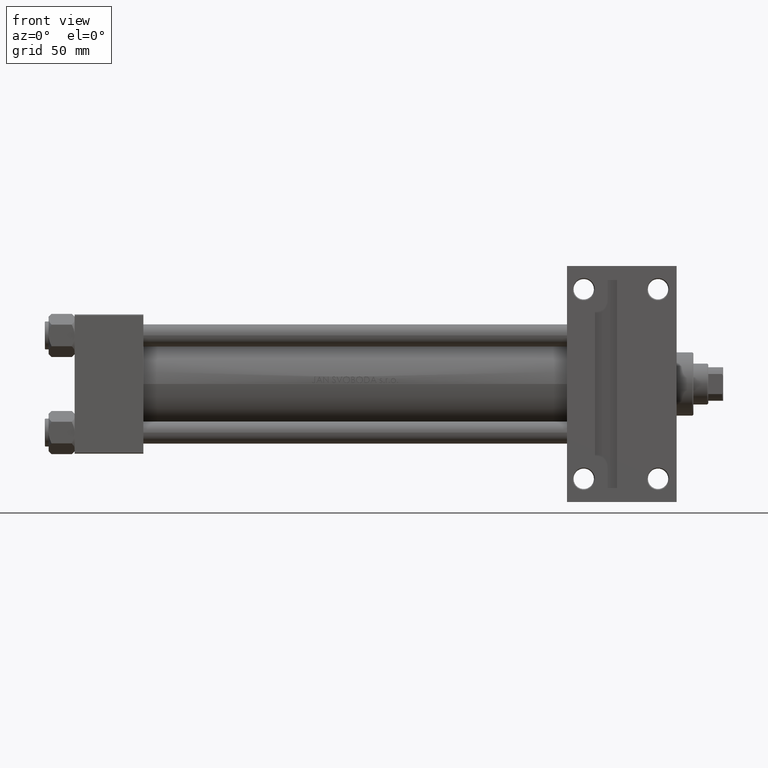
[diagram: clean part render]
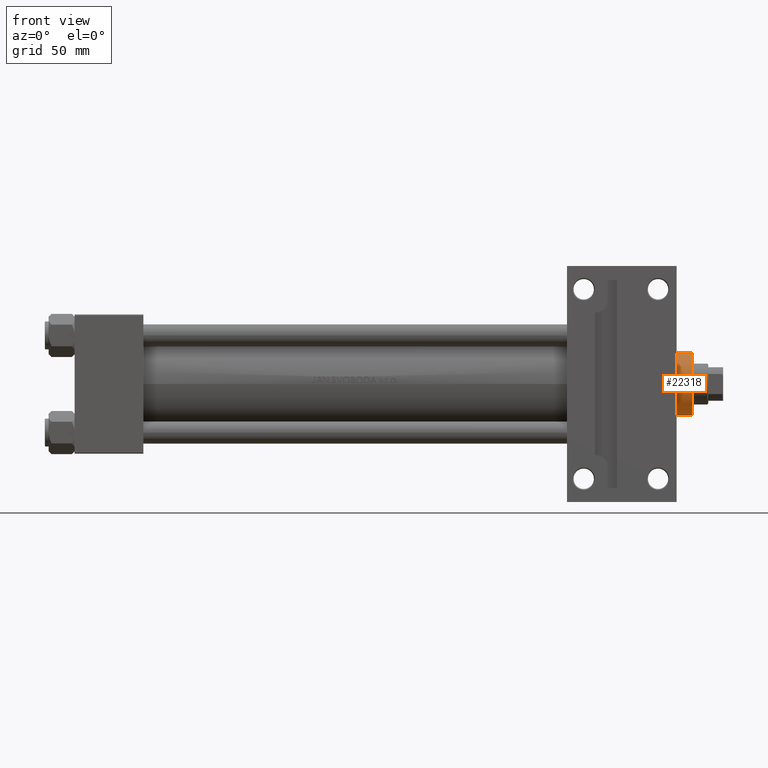
[diagram: same view with one face highlighted and labeled with its STEP entity id]
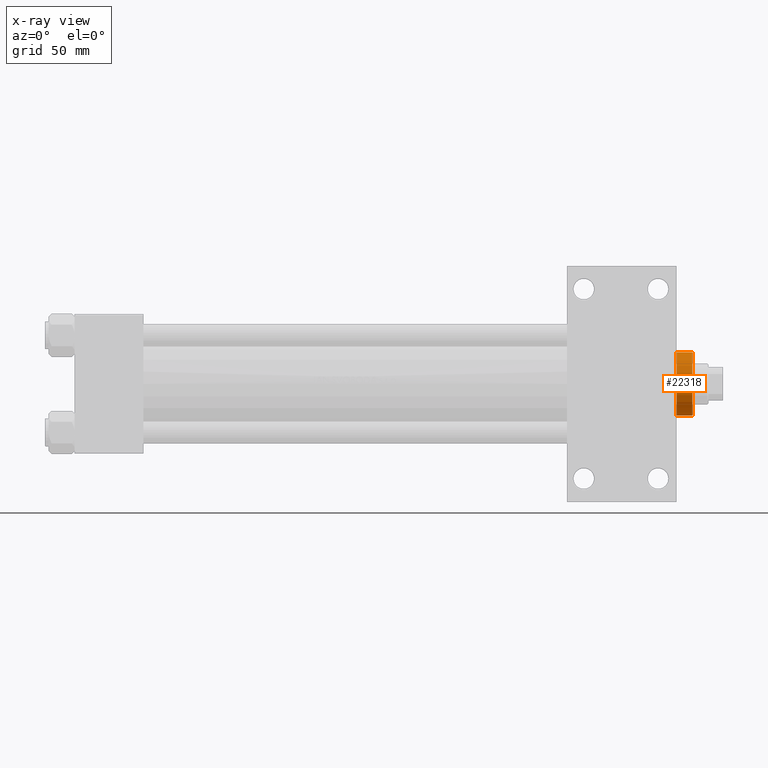
[diagram: x-ray of the same camera — body ghosted, the highlighted face saturated]
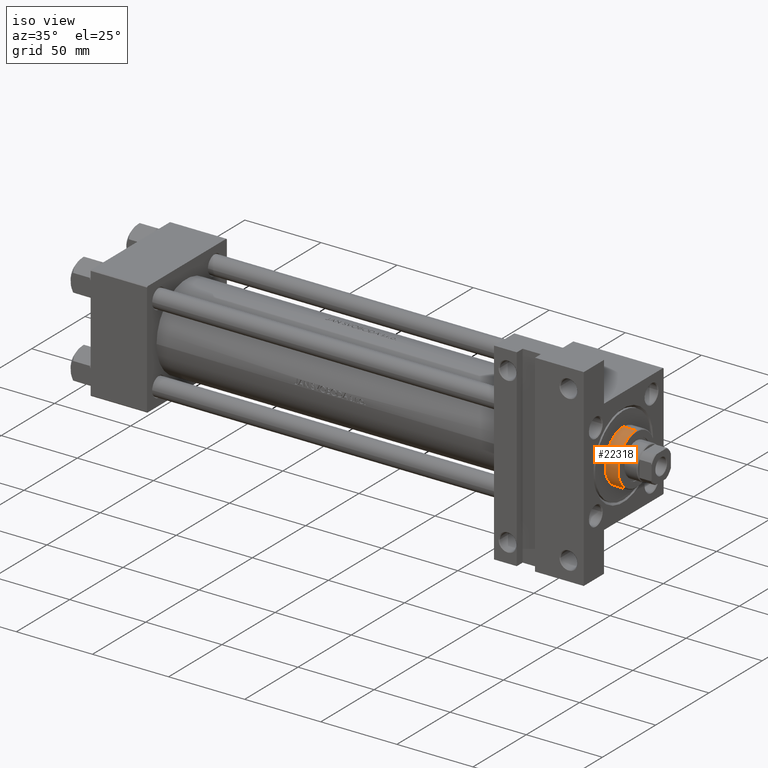
[diagram: same view with one face highlighted and labeled with its STEP entity id]
A machine part, front view. The second image highlights one B-rep face of the part: STEP entity #22318.
The next image is the same camera in x-ray: the body ghosted, the highlighted face saturated — about 0% of this face is hidden behind the body in this view.
A second angle (iso view) of the same face is appended — the face is thin or edge-on in the first view.
In plain terms, the highlighted cylindrical surface (edge-blend (fillet) strip) has radius 17 mm, axis along (-1, 0, 0).
Its self-contained STEP definition (entity closure, byte-faithful):
#25 = VERTEX_POINT ( 'NONE', #38814 ) ;
#211 = AXIS2_PLACEMENT_3D ( 'NONE', #9733, #24403, #42721 ) ;
#1788 = DIRECTION ( 'NONE',  ( 0.000000000000000000, 0.000000000000000000, -1.000000000000000000 ) ) ;
#2065 = ORIENTED_EDGE ( 'NONE', *, *, #45219, .T. ) ;
#3341 = ORIENTED_EDGE ( 'NONE', *, *, #20397, .F. ) ;
#3928 = AXIS2_PLACEMENT_3D ( 'NONE', #20055, #1788, #42231 ) ;
#5428 = CYLINDRICAL_SURFACE ( 'NONE', #211, 17.00000000000000000 ) ;
#6748 = DIRECTION ( 'NONE',  ( 1.000000000000000000, 0.000000000000000000, 0.000000000000000000 ) ) ;
#7218 = DIRECTION ( 'NONE',  ( 0.000000000000000000, 0.000000000000000000, 1.000000000000000000 ) ) ;
#9258 = CIRCLE ( 'NONE', #30736, 17.00000000000000000 ) ;
#9367 = VECTOR ( 'NONE', #27815, 1000.000000000000000 ) ;
#9733 = CARTESIAN_POINT ( 'NONE',  ( 0.000000000000000000, 0.000000000000000000, 37.69999999999999574 ) ) ;
#11317 = CARTESIAN_POINT ( 'NONE',  ( 17.00000000000000000, 2.081899558550500280E-15, 37.69999999999999574 ) ) ;
#11784 = DIRECTION ( 'NONE',  ( -0.000000000000000000, -0.000000000000000000, -1.000000000000000000 ) ) ;
#13332 = FACE_OUTER_BOUND ( 'NONE', #22979, .T. ) ;
#13595 = ORIENTED_EDGE ( 'NONE', *, *, #18183, .T. ) ;
#18183 = EDGE_CURVE ( 'NONE', #42038, #28123, #29992, .T. ) ;
#20055 = CARTESIAN_POINT ( 'NONE',  ( 0.000000000000000000, 0.000000000000000000, 37.19999999999999574 ) ) ;
#20117 = LINE ( 'NONE', #30705, #9367 ) ;
#20397 = EDGE_CURVE ( 'NONE', #42038, #25, #20117, .T. ) ;
#21636 = CARTESIAN_POINT ( 'NONE',  ( 0.000000000000000000, 0.000000000000000000, 28.69999999999999929 ) ) ;
#22032 = CARTESIAN_POINT ( 'NONE',  ( 17.00000000000000000, 2.081899558550500280E-15, 37.19999999999999574 ) ) ;
#22318 = ADVANCED_FACE ( 'NONE', ( #13332 ), #5428, .T. ) ;
#22979 = EDGE_LOOP ( 'NONE', ( #13595, #2065, #34300, #3341 ) ) ;
#24074 = CARTESIAN_POINT ( 'NONE',  ( 17.00000000000000000, 2.081899558550500280E-15, 28.69999999999999929 ) ) ;
#24403 = DIRECTION ( 'NONE',  ( -0.000000000000000000, -0.000000000000000000, -1.000000000000000000 ) ) ;
#26133 = VECTOR ( 'NONE', #11784, 1000.000000000000000 ) ;
#27815 = DIRECTION ( 'NONE',  ( -0.000000000000000000, -0.000000000000000000, -1.000000000000000000 ) ) ;
#28123 = VERTEX_POINT ( 'NONE', #22032 ) ;
#29459 = VERTEX_POINT ( 'NONE', #24074 ) ;
#29992 = CIRCLE ( 'NONE', #3928, 17.00000000000000000 ) ;
#30705 = CARTESIAN_POINT ( 'NONE',  ( -17.00000000000000000, 0.000000000000000000, 37.69999999999999574 ) ) ;
#30736 = AXIS2_PLACEMENT_3D ( 'NONE', #21636, #7218, #6748 ) ;
#34300 = ORIENTED_EDGE ( 'NONE', *, *, #41201, .T. ) ;
#37068 = LINE ( 'NONE', #11317, #26133 ) ;
#38814 = CARTESIAN_POINT ( 'NONE',  ( -17.00000000000000000, 0.000000000000000000, 28.69999999999999929 ) ) ;
#41201 = EDGE_CURVE ( 'NONE', #29459, #25, #9258, .T. ) ;
#42038 = VERTEX_POINT ( 'NONE', #46729 ) ;
#42231 = DIRECTION ( 'NONE',  ( 1.000000000000000000, 0.000000000000000000, 0.000000000000000000 ) ) ;
#42721 = DIRECTION ( 'NONE',  ( -1.000000000000000000, 0.000000000000000000, 0.000000000000000000 ) ) ;
#45219 = EDGE_CURVE ( 'NONE', #28123, #29459, #37068, .T. ) ;
#46729 = CARTESIAN_POINT ( 'NONE',  ( -17.00000000000000000, 0.000000000000000000, 37.19999999999999574 ) ) ;